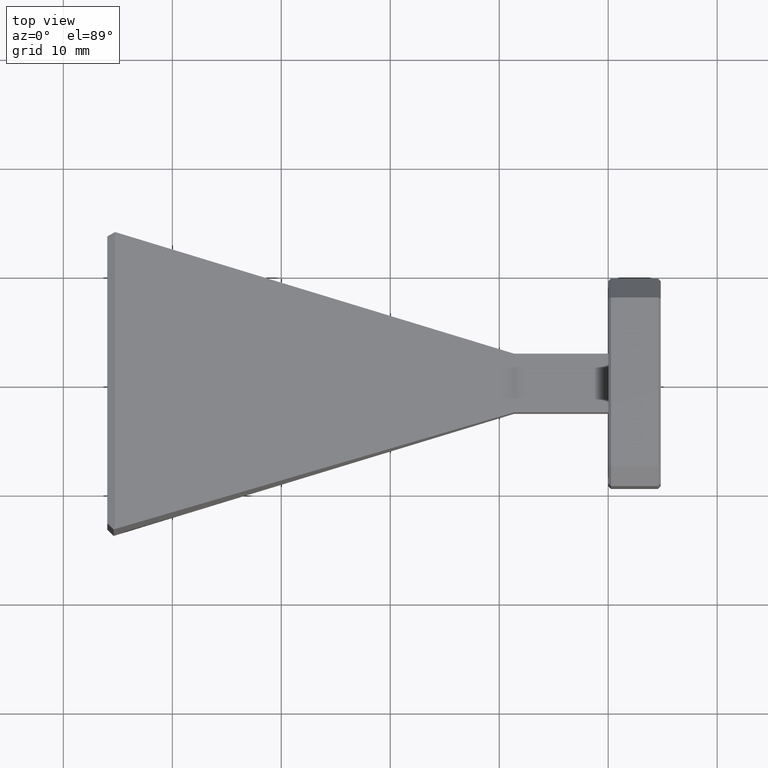
[diagram: clean part render]
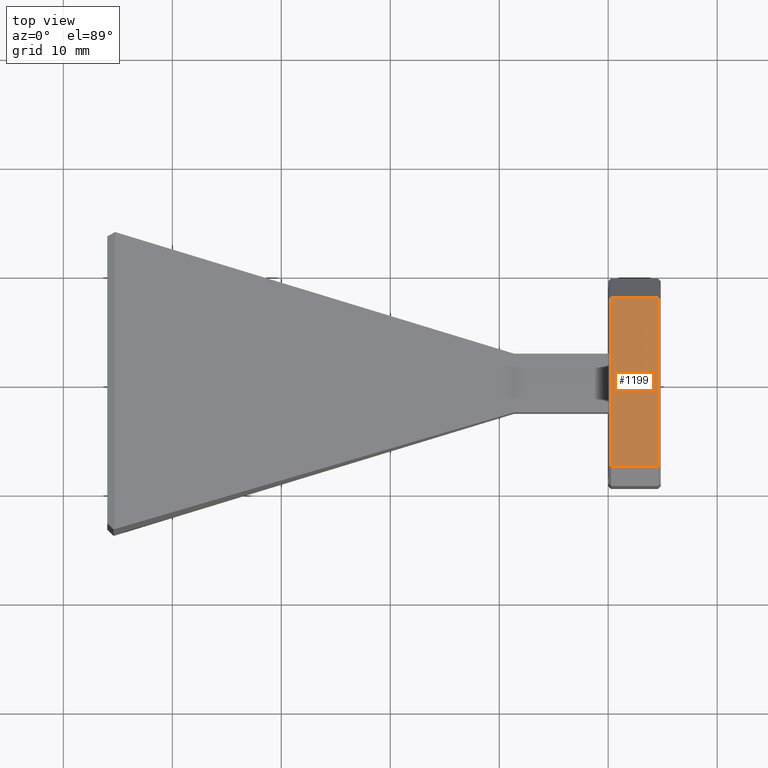
[diagram: same view with one face highlighted and labeled with its STEP entity id]
A machine part, top view. The second image highlights one B-rep face of the part: STEP entity #1199.
In plain terms, the highlighted planar face has unit normal (0, 0, -1).
Its self-contained STEP definition (entity closure, byte-faithful):
#19 = CARTESIAN_POINT ( 'NONE',  ( 0.1800000000000001000, 0.3050000000000007700, 0.3750000000000000600 ) ) ;
#33 = LINE ( 'NONE', #763, #790 ) ;
#41 = EDGE_CURVE ( 'NONE', #1385, #58, #157, .T. ) ;
#56 = VERTEX_POINT ( 'NONE', #1389 ) ;
#58 = VERTEX_POINT ( 'NONE', #769 ) ;
#82 = LINE ( 'NONE', #195, #1004 ) ;
#130 = DIRECTION ( 'NONE',  ( 0.0000000000000000000, 1.821231995776175700E-016, -1.000000000000000000 ) ) ;
#157 = LINE ( 'NONE', #19, #293 ) ;
#195 = CARTESIAN_POINT ( 'NONE',  ( 0.1600000000000000000, 0.3050000000000007700, 0.3750000000000000600 ) ) ;
#249 = PLANE ( 'NONE',  #1211 ) ;
#293 = VECTOR ( 'NONE', #493, 39.37007874015748100 ) ;
#297 = ORIENTED_EDGE ( 'NONE', *, *, #41, .T. ) ;
#337 = EDGE_CURVE ( 'NONE', #564, #1385, #749, .T. ) ;
#345 = CARTESIAN_POINT ( 'NONE',  ( 0.1600000000000000000, -0.3049999999999996600, 0.3749999999999998900 ) ) ;
#375 = ORIENTED_EDGE ( 'NONE', *, *, #919, .T. ) ;
#407 = DIRECTION ( 'NONE',  ( 0.0000000000000000000, -1.000000000000000000, -1.821231995776175700E-016 ) ) ;
#493 = DIRECTION ( 'NONE',  ( 0.0000000000000000000, 1.000000000000000000, 1.821231995776175700E-016 ) ) ;
#564 = VERTEX_POINT ( 'NONE', #1000 ) ;
#666 = VECTOR ( 'NONE', #701, 39.37007874015748100 ) ;
#677 = DIRECTION ( 'NONE',  ( -1.000000000000000000, 0.0000000000000000000, 0.0000000000000000000 ) ) ;
#701 = DIRECTION ( 'NONE',  ( 1.000000000000000000, 0.0000000000000000000, 0.0000000000000000000 ) ) ;
#749 = LINE ( 'NONE', #345, #666 ) ;
#763 = CARTESIAN_POINT ( 'NONE',  ( 0.009999999999999892700, 0.3750000000000000600, 0.3750000000000000600 ) ) ;
#769 = CARTESIAN_POINT ( 'NONE',  ( 0.1800000000000001000, 0.3050000000000007700, 0.3750000000000000600 ) ) ;
#790 = VECTOR ( 'NONE', #407, 39.37007874015748100 ) ;
#794 = ORIENTED_EDGE ( 'NONE', *, *, #337, .T. ) ;
#919 = EDGE_CURVE ( 'NONE', #58, #56, #82, .T. ) ;
#1000 = CARTESIAN_POINT ( 'NONE',  ( 0.009999999999999892700, -0.3049999999999996600, 0.3749999999999998900 ) ) ;
#1004 = VECTOR ( 'NONE', #677, 39.37007874015748100 ) ;
#1199 = ADVANCED_FACE ( 'NONE', ( #1378 ), #249, .F. ) ;
#1211 = AXIS2_PLACEMENT_3D ( 'NONE', #1336, #130, #1227 ) ;
#1227 = DIRECTION ( 'NONE',  ( 0.0000000000000000000, 1.000000000000000000, 1.821231995776175700E-016 ) ) ;
#1269 = CARTESIAN_POINT ( 'NONE',  ( 0.1800000000000001000, -0.3049999999999996600, 0.3749999999999998900 ) ) ;
#1294 = ORIENTED_EDGE ( 'NONE', *, *, #1343, .T. ) ;
#1336 = CARTESIAN_POINT ( 'NONE',  ( 0.1600000000000000000, 0.3750000000000000600, 0.3750000000000000600 ) ) ;
#1343 = EDGE_CURVE ( 'NONE', #56, #564, #33, .T. ) ;
#1378 = FACE_OUTER_BOUND ( 'NONE', #1398, .T. ) ;
#1385 = VERTEX_POINT ( 'NONE', #1269 ) ;
#1389 = CARTESIAN_POINT ( 'NONE',  ( 0.009999999999999892700, 0.3050000000000007700, 0.3750000000000000600 ) ) ;
#1398 = EDGE_LOOP ( 'NONE', ( #375, #1294, #794, #297 ) ) ;